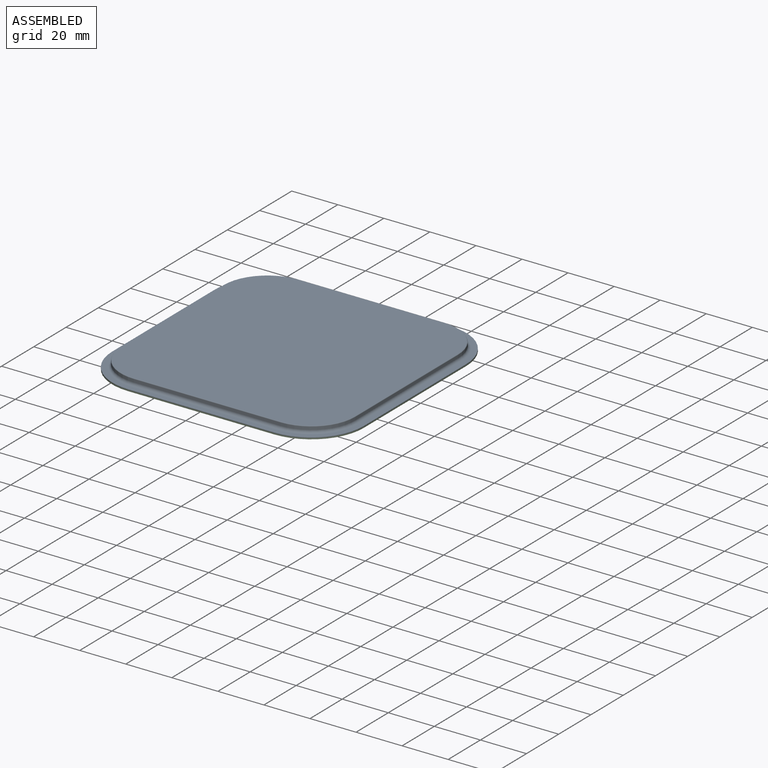
[diagram: assembled view]
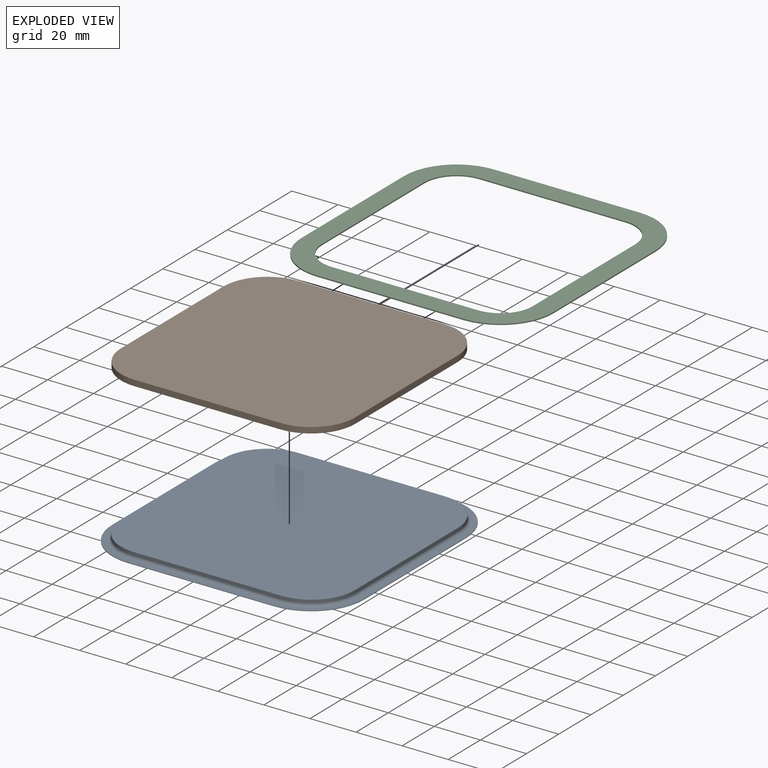
[diagram: exploded view]
GUIDED TOUR — MATED ASSEMBLY (Onshape document 93074e00193cefcead6a55a1, AutoMate assembly 93074e00193cefcead6a55a1_c872bc3015133a66d69f15c5_7cd3adaa53762b3b153b5e1a_default)

This assembly has 3 components, labeled P0..P2 below (a component is one placed occurrence of a part; the same part can appear more than once), held together by 2 mates. A mate is a constraint between two components; its type names the relative motion it leaves free:
  CYLINDRICAL — leaves both rotation about and translation along the listed axis free,
  FASTENED — locks the two components together rigidly (no relative motion).
Axis/direction vectors are unit vectors and 'through' points are millimeter coordinates, both in the assembly's world frame.

MATES
  1. FASTENED "Fastened 1": P2 <-> P0, direction (0.000, -1.000, 0.000) through (21.22, 0.59, 2.19) mm
  2. CYLINDRICAL "Cylindrical 1": P0 <-> P1, axis (0.000, 0.000, -1.000) through (-1.64, -31.16, 3.97) mm

ASSEMBLY ORDER
  1. P1 — the base component [order verified]
  2. P0 [order verified]
  3. P2 [order verified]
(P0 verified with a relaxed clearance tolerance: the source model stores slight part interference there.)
Order-tag legend:
  [order verified] — this step's position reverses a verified removal order: the component was checked to insert without passing through the ones already placed.

Of the 3 components, 1 carries the full construction recipe — the FeatureScript program that regenerates the part's solid from scratch; the rest are supplied as boundary geometry only.
Each toured component is shown spotlighted twice — in the assembled view, then in the exploded view, where a leader line traces a displaced component back to its assembled socket (saturated green if recipe-attached, orange if geometry-only; every other component desaturated gray) — followed by its recipe or geometry summary and the mates that hold it.
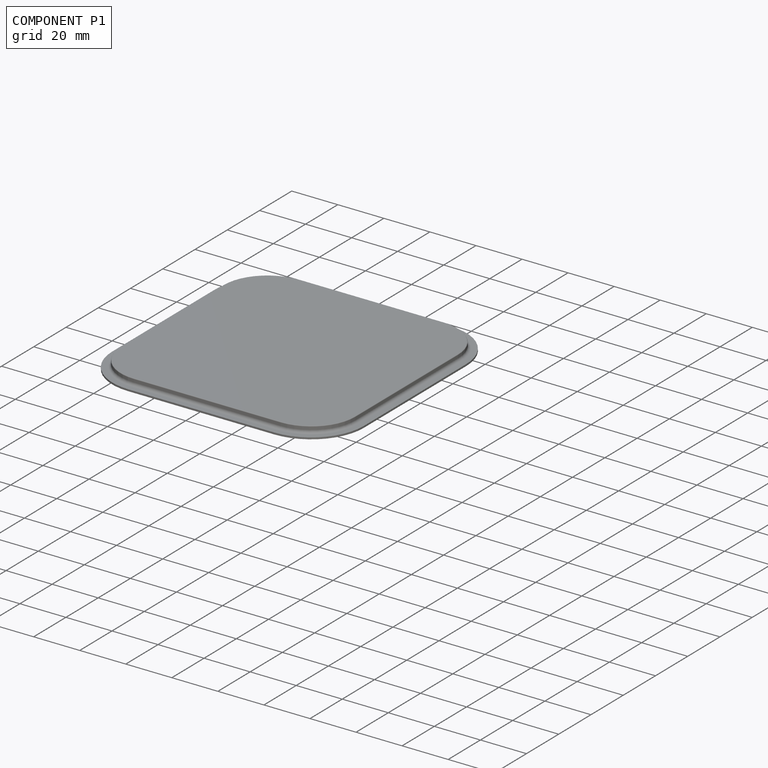
[diagram: component P1 — assembled]
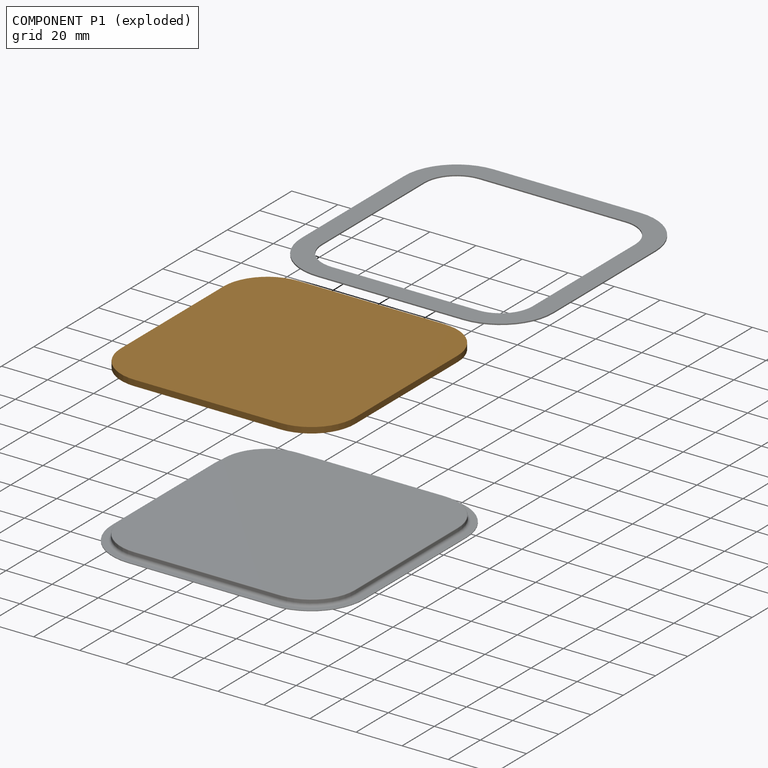
[diagram: component P1 — exploded]
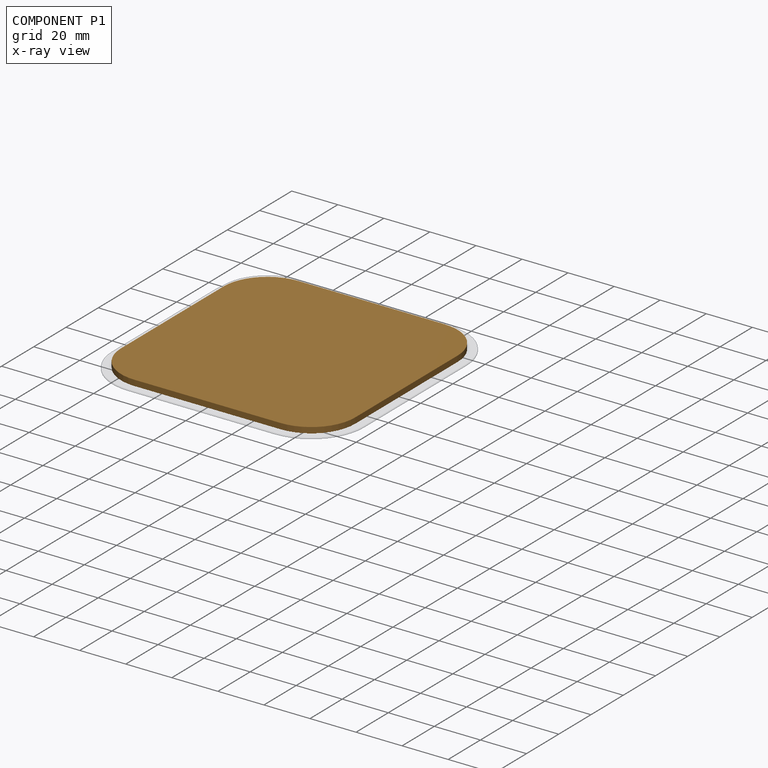
[diagram: component P1 — x-ray view]
COMPONENT P1 — geometry summary (no construction recipe available for this part):
  bounding box: 101.6 x 101.6 x 2.5 mm
  B-rep topology: 1 solid, 10 faces, 48 edges
  volume: 25428 mm^3 (97% of its bounding box)
  symmetry: 2-fold rotationally symmetric about the x axis; 2-fold rotationally symmetric about the y axis; 4-fold rotationally symmetric about the z axis; mirror-symmetric across its x mid-plane, y mid-plane, z mid-plane
Held by: CYLINDRICAL mate "Cylindrical 1" to P0.
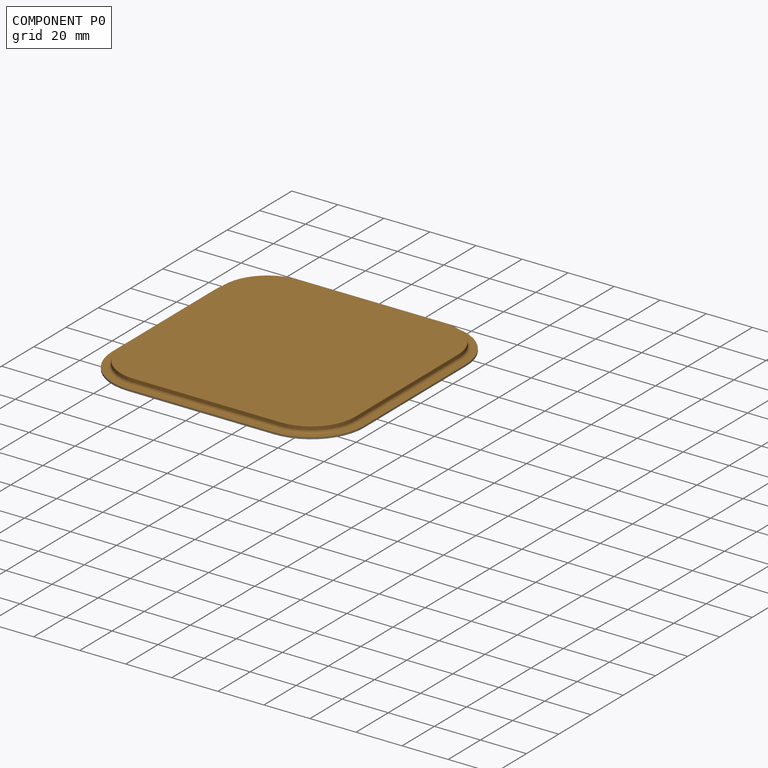
[diagram: component P0 — assembled]
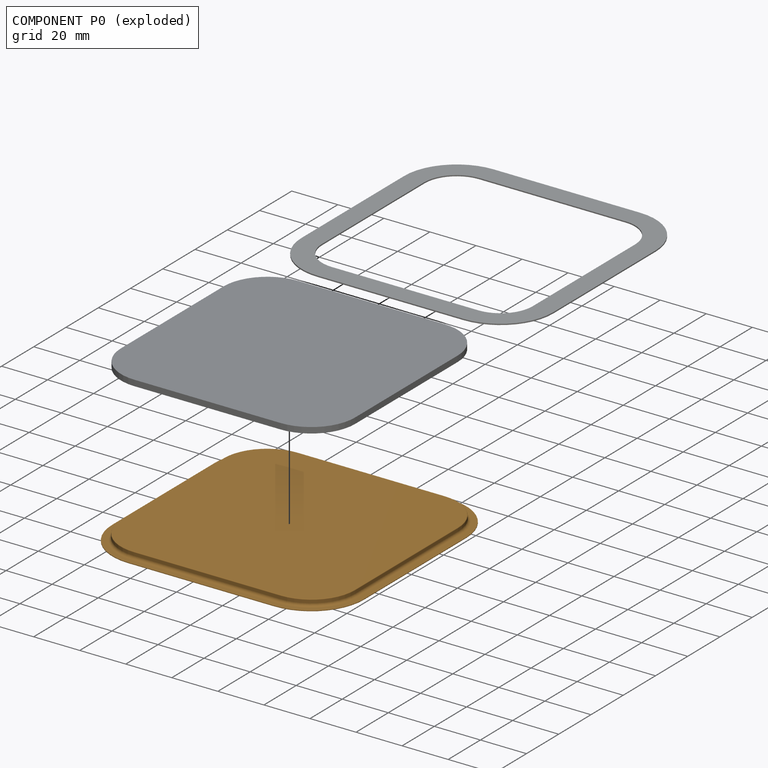
[diagram: component P0 — exploded]
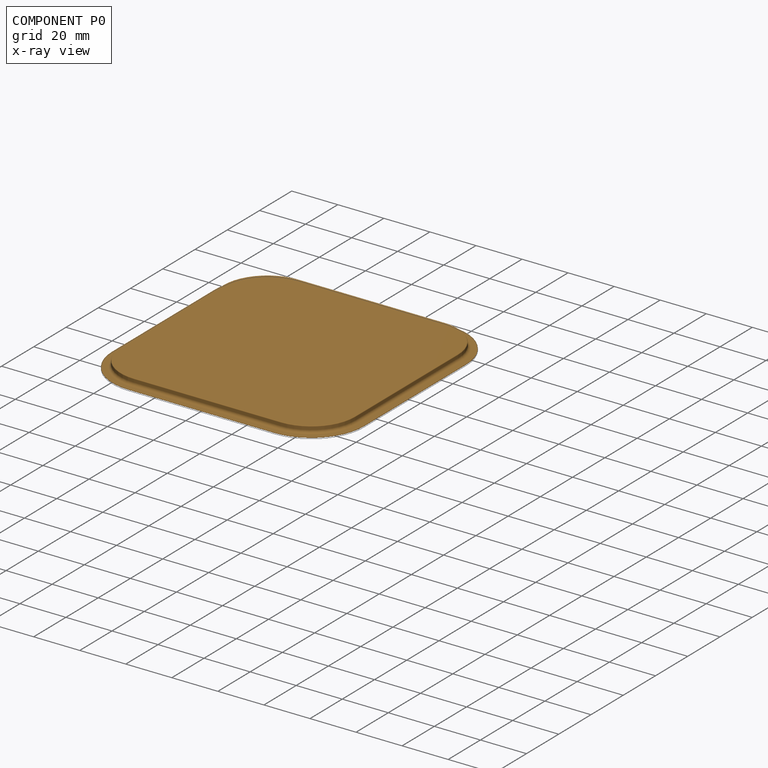
[diagram: component P0 — x-ray view]
COMPONENT P0 — geometry summary (no construction recipe available for this part):
  bounding box: 109.7 x 109.7 x 3.0 mm
  B-rep topology: 1 solid, 60 faces, 272 edges
  volume: 5604 mm^3 (15% of its bounding box)
  symmetry: 4-fold rotationally symmetric about the z axis; mirror-symmetric across its x mid-plane, y mid-plane
Held by: FASTENED mate "Fastened 1" to P2; CYLINDRICAL mate "Cylindrical 1" to P1.
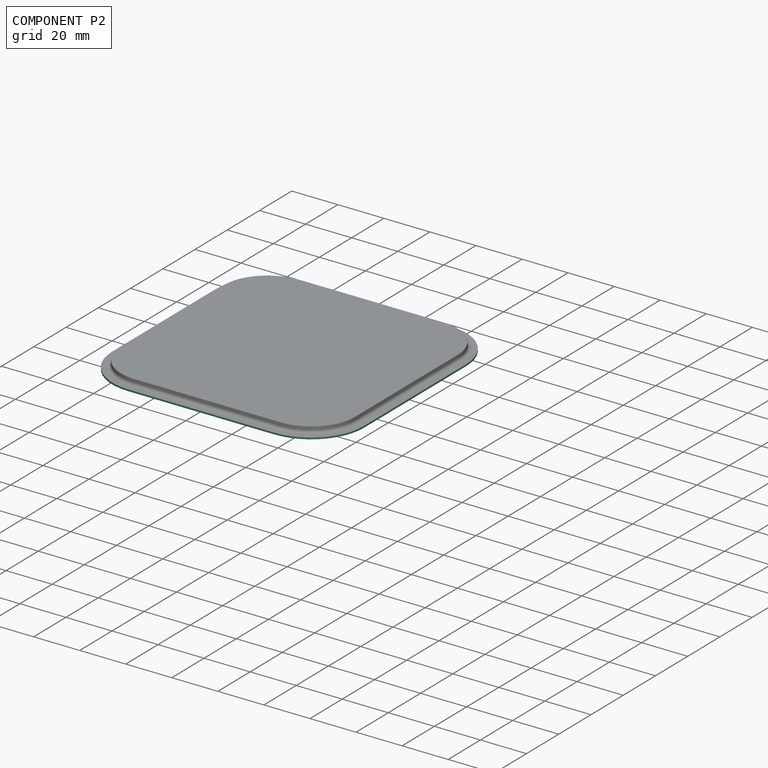
[diagram: component P2 — assembled]
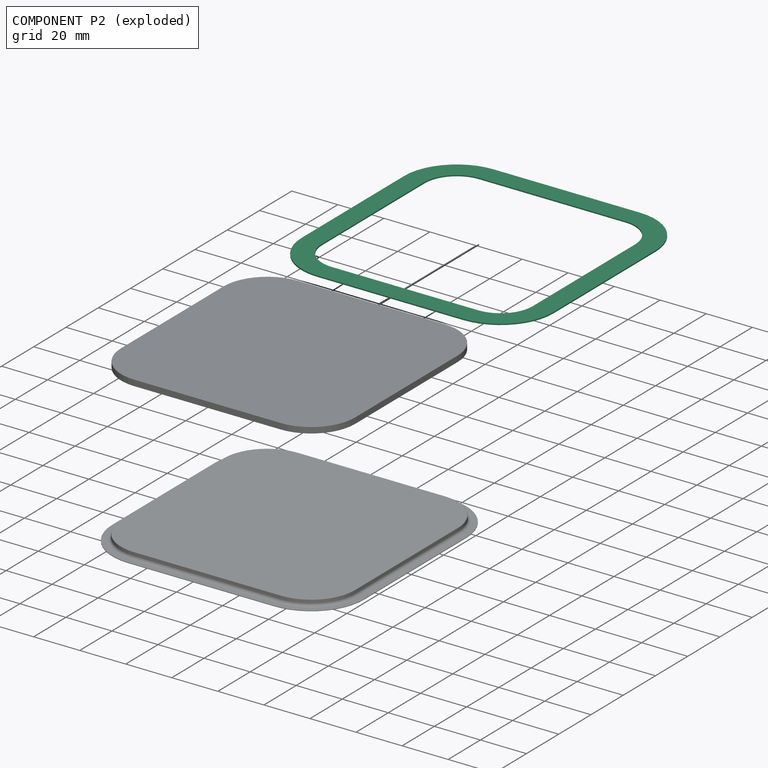
[diagram: component P2 — exploded]
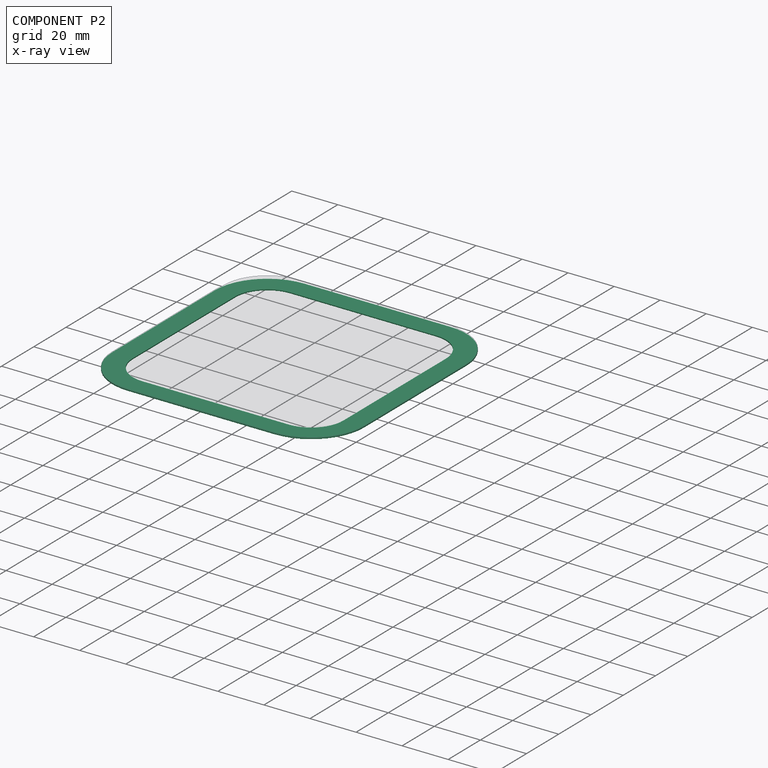
[diagram: component P2 — x-ray view]
COMPONENT P2 — recipe-attached (CADFS 00664944, mesh-verified: the recipe's output STEP matches this component's geometry to below the mesh-comparison resolution (tessellation chordal tolerance ~0.232 mm)).
Held by: FASTENED mate "Fastened 1" to P0.
Construction recipe (FeatureScript — the CAD program that rebuilds this solid; sketch coordinates are in the units given by the * unit suffixes, e.g. mm):

FeatureScript 1511;
import(path : "onshape/std/geometry.fs", version : "1511.0");
import(path : "onshape/std/common.fs", version : "1511.0");
const mm = millimeter;
const VERTEX = EntityType.VERTEX;
const EDGE = EntityType.EDGE;
const FACE = EntityType.FACE;
const BODY = EntityType.BODY;
function v(x, y){return vector(x, y);}
function OD(order){return orderDisambiguation(order);}
function OSD(set){return originalSetDisambiguation(set);}
function TD(topology){return topologyDisambiguation(topology);}
function TDD(query){return trueDependencyDisambiguation(query);}
function sQuery(a, b, c) {return sketchEntityQuery(a, b, c);}

annotation { "Feature Type Name" : "Feature", "Feature Type Description" : "" }
export const myFeature = defineFeature(function(context is Context, id is Id, definition is map)
    precondition{}
    {
        {
            var Q0;
            Q0=qCreatedBy(makeId("Top.planeOp"),FACE);
            var sketch = newSketch(context, id + "F0", { "sketchPlane" : qUnion([Q0])});
            skLineSegment(sketch, "E0.bottom", {"start": v(31.75, 54.61) * mm, "end": v(-31.75, 54.61) * mm});
            skLineSegment(sketch, "E0.top", {"start": v(31.75, -54.61) * mm, "end": v(-31.75, -54.61) * mm});
            skLineSegment(sketch, "E0.left", {"start": v(54.61, 31.75) * mm, "end": v(54.61, -31.75) * mm});
            skLineSegment(sketch, "E0.right", {"start": v(-54.61, 31.75) * mm, "end": v(-54.61, -31.75) * mm});
            skPoint(sketch, "E0.middle", {"position": v(0, 0) * mm});
            skPoint(sketch, "E1.visualSharp", {"position": v(-54.61, 54.61) * mm});
            skArc(sketch, "E1.filletArc", {"start": v(-31.75, 54.61) * mm, "mid": v(-47.91, 47.91) * mm, "end": v(-54.61, 31.75) * mm});
            skPoint(sketch, "E2.visualSharp", {"position": v(54.61, 54.61) * mm});
            skArc(sketch, "E2.filletArc", {"start": v(54.61, 31.75) * mm, "mid": v(47.91, 47.91) * mm, "end": v(31.75, 54.61) * mm});
            skPoint(sketch, "E3.visualSharp", {"position": v(54.61, -54.61) * mm});
            skArc(sketch, "E3.filletArc", {"start": v(31.75, -54.61) * mm, "mid": v(47.91, -47.91) * mm, "end": v(54.61, -31.75) * mm});
            skPoint(sketch, "E4.visualSharp", {"position": v(-54.61, -54.61) * mm});
            skArc(sketch, "E4.filletArc", {"start": v(-54.61, -31.75) * mm, "mid": v(-47.91, -47.91) * mm, "end": v(-31.75, -54.61) * mm});
            skLineSegment(sketch, "E5.bottom", {"start": v(31.75, -45.72) * mm, "end": v(-31.75, -45.72) * mm});
            skLineSegment(sketch, "E5.top", {"start": v(31.75, 45.72) * mm, "end": v(-31.75, 45.72) * mm});
            skLineSegment(sketch, "E5.left", {"start": v(45.72, -31.75) * mm, "end": v(45.72, 31.75) * mm});
            skLineSegment(sketch, "E5.right", {"start": v(-45.72, -31.75) * mm, "end": v(-45.72, 31.75) * mm});
            skPoint(sketch, "E6.visualSharp", {"position": v(-45.72, 45.72) * mm});
            skArc(sketch, "E6.filletArc", {"start": v(-31.75, 45.72) * mm, "mid": v(-41.63, 41.63) * mm, "end": v(-45.72, 31.75) * mm});
            skPoint(sketch, "E7.visualSharp", {"position": v(-45.72, -45.72) * mm});
            skArc(sketch, "E7.filletArc", {"start": v(-45.72, -31.75) * mm, "mid": v(-41.63, -41.63) * mm, "end": v(-31.75, -45.72) * mm});
            skPoint(sketch, "E8.visualSharp", {"position": v(45.72, -45.72) * mm});
            skArc(sketch, "E8.filletArc", {"start": v(31.75, -45.72) * mm, "mid": v(41.63, -41.63) * mm, "end": v(45.72, -31.75) * mm});
            skPoint(sketch, "E9.visualSharp", {"position": v(45.72, 45.72) * mm});
            skArc(sketch, "E9.filletArc", {"start": v(45.72, 31.75) * mm, "mid": v(41.63, 41.63) * mm, "end": v(31.75, 45.72) * mm});
            skSolve(sketch);
        }
        {
            var Q0;
            Q0 = qSketchRegion(id + "F0", true);
            extrude(context, id + "F1", {"entities" : qUnion([Q0]), "depth" : 0.5 * mm, "offsetDistance" : 25.4 * mm});
        }
    });
PROVENANCE & LICENSES
Assembly (occurrences, transforms, mates, per-part STEP geometry): AutoMate dataset, Zenodo record 7776208, CC0.
Construction recipes: CADFS (HuggingFace VladPyatov/CADFS, CC-BY-4.0, layered over the ABC dataset), FeatureScript reconstruction programs keyed by ABC model id.
Join: ABC meta listings map ABC model id -> Onshape documentId; within a shared document, parts are matched by geometric signature (bounding-box dims + volume at 0.1% relative tolerance, exact B-rep face/solid counts).
Verification: 1 of this assembly's 3 components carries a recipe attachment, and every attachment is mesh-verified: the CADFS STEP and the AutoMate member STEP were compared as meshes in their shared local frame (symmetric sampled-point-to-mesh distance); worst across the 1 attachment: below the mesh-comparison resolution (tessellation chordal tolerance ~0.232 mm) on a 154 mm part.
Renders: orthographic iso camera (az 35 / el 25); the floor grid conveys scale (grid pitch printed in each image; no ruler). In the exploded view each component is displaced by its stored offset vector: the offsets alone carry the explosion direction (mate normal/axis signs are not orientation cues and do not encode it), and separation distances are assigned per mate-chain, not proportionally to assembly-order depth.
